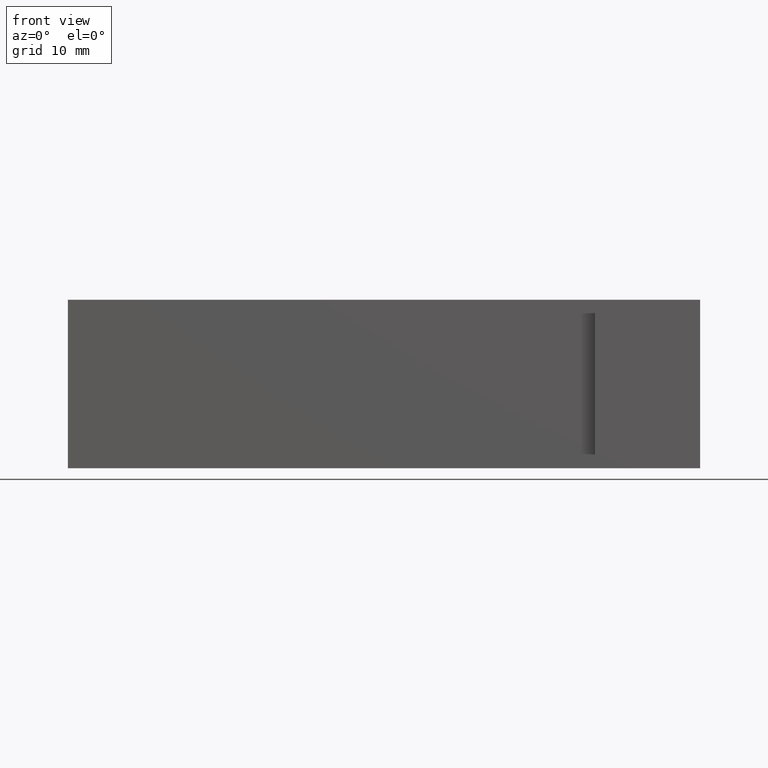
[diagram: clean part render]
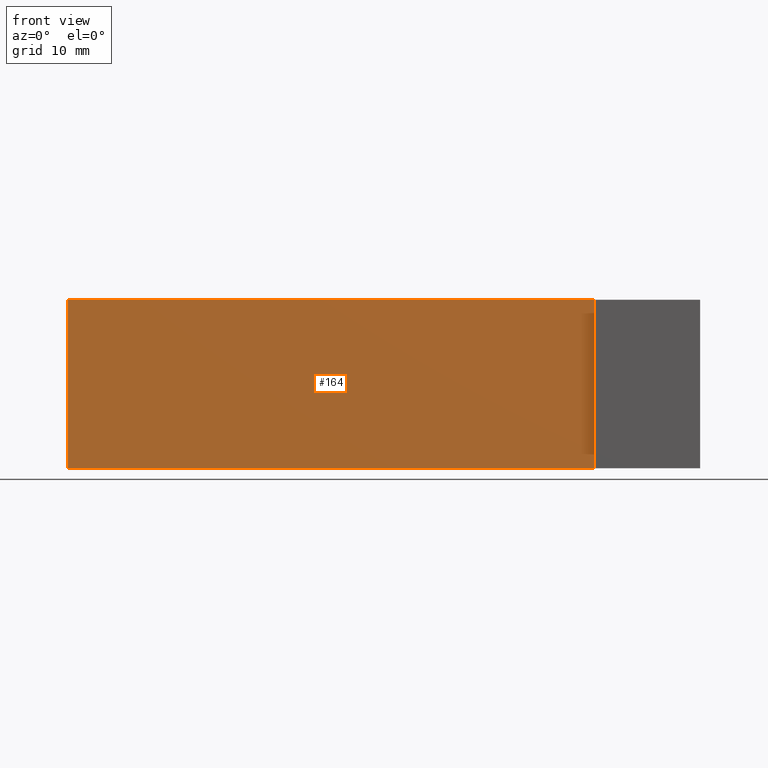
[diagram: same view with one face highlighted and labeled with its STEP entity id]
A machine part, front view. The second image highlights one B-rep face of the part: STEP entity #164.
In plain terms, the highlighted planar face has unit normal (0, -1, 0).
Its self-contained STEP definition (entity closure, byte-faithful):
#18=FACE_OUTER_BOUND('',#27,.T.);
#27=EDGE_LOOP('',(#122,#123,#124,#125));
#37=LINE('',#254,#58);
#42=LINE('',#264,#63);
#44=LINE('',#268,#65);
#45=LINE('',#269,#66);
#58=VECTOR('',#210,10.);
#63=VECTOR('',#217,10.);
#65=VECTOR('',#221,10.);
#66=VECTOR('',#222,10.);
#79=VERTEX_POINT('',#251);
#80=VERTEX_POINT('',#253);
#84=VERTEX_POINT('',#262);
#85=VERTEX_POINT('',#267);
#93=EDGE_CURVE('',#80,#79,#37,.T.);
#98=EDGE_CURVE('',#84,#79,#42,.T.);
#100=EDGE_CURVE('',#84,#85,#44,.T.);
#101=EDGE_CURVE('',#85,#80,#45,.T.);
#122=ORIENTED_EDGE('',*,*,#100,.T.);
#123=ORIENTED_EDGE('',*,*,#101,.T.);
#124=ORIENTED_EDGE('',*,*,#93,.T.);
#125=ORIENTED_EDGE('',*,*,#98,.F.);
#155=PLANE('',#196);
#164=ADVANCED_FACE('',(#18),#155,.T.);
#196=AXIS2_PLACEMENT_3D('',#266,#219,#220);
#210=DIRECTION('',(1.,3.71924713249427E-16,0.));
#217=DIRECTION('',(0.,0.,-1.));
#219=DIRECTION('center_axis',(3.71924713249427E-16,-1.,0.));
#220=DIRECTION('ref_axis',(0.,0.,-1.));
#221=DIRECTION('',(-1.,-3.71924713249427E-16,0.));
#222=DIRECTION('',(0.,0.,-1.));
#251=CARTESIAN_POINT('',(-9.99999999999999,1.30451205393456E-14,-8.));
#253=CARTESIAN_POINT('',(-60.,-5.55111512312578E-15,-8.));
#254=CARTESIAN_POINT('',(-9.99999999999999,1.30451205393456E-14,-8.));
#262=CARTESIAN_POINT('',(-9.99999999999999,1.30451205393456E-14,8.));
#264=CARTESIAN_POINT('',(-9.99999999999999,1.30451205393456E-14,0.));
#266=CARTESIAN_POINT('Origin',(-9.99999999999999,1.30451205393456E-14,0.));
#267=CARTESIAN_POINT('',(-60.,-5.55111512312578E-15,8.));
#268=CARTESIAN_POINT('',(-9.99999999999999,1.30451205393456E-14,8.));
#269=CARTESIAN_POINT('',(-60.,-5.55111512312578E-15,0.));